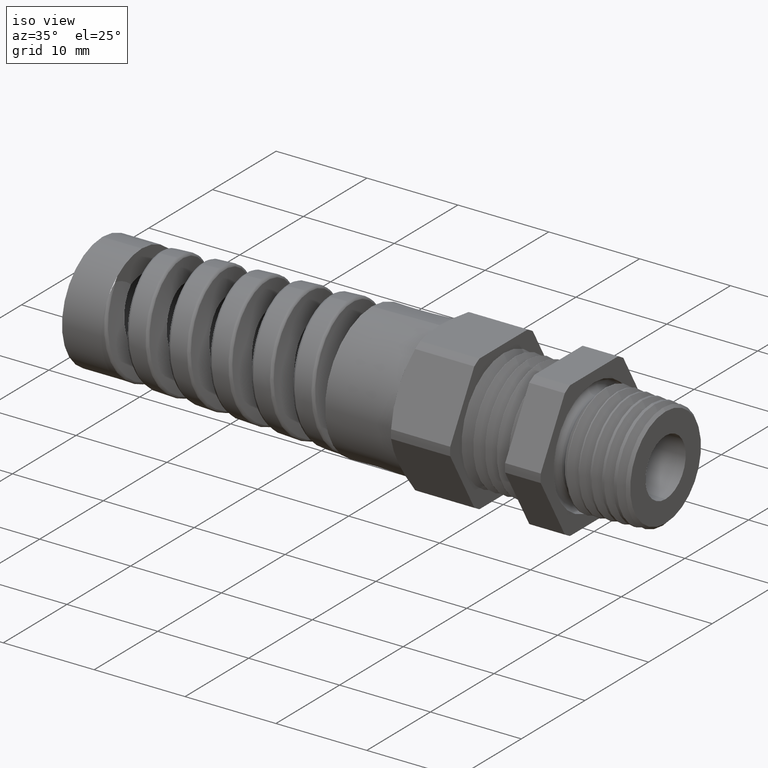
[diagram: clean part render]
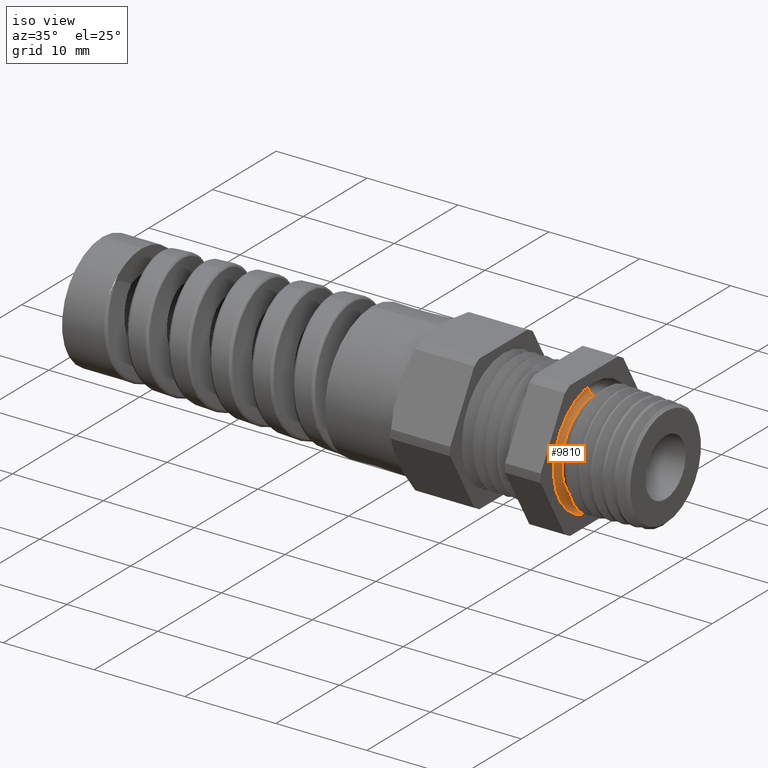
[diagram: same view with one face highlighted and labeled with its STEP entity id]
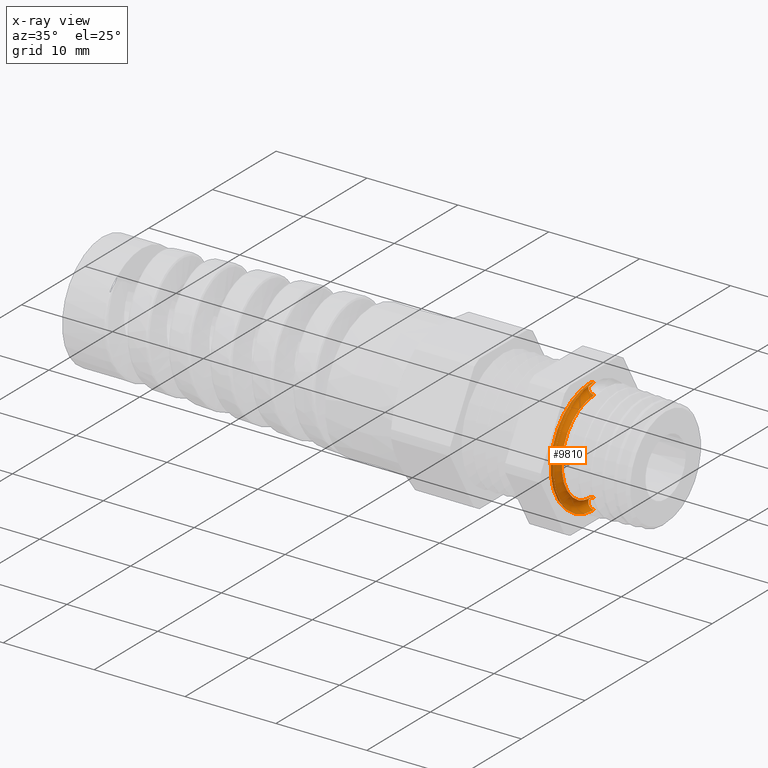
[diagram: x-ray of the same camera — body ghosted, the highlighted face saturated]
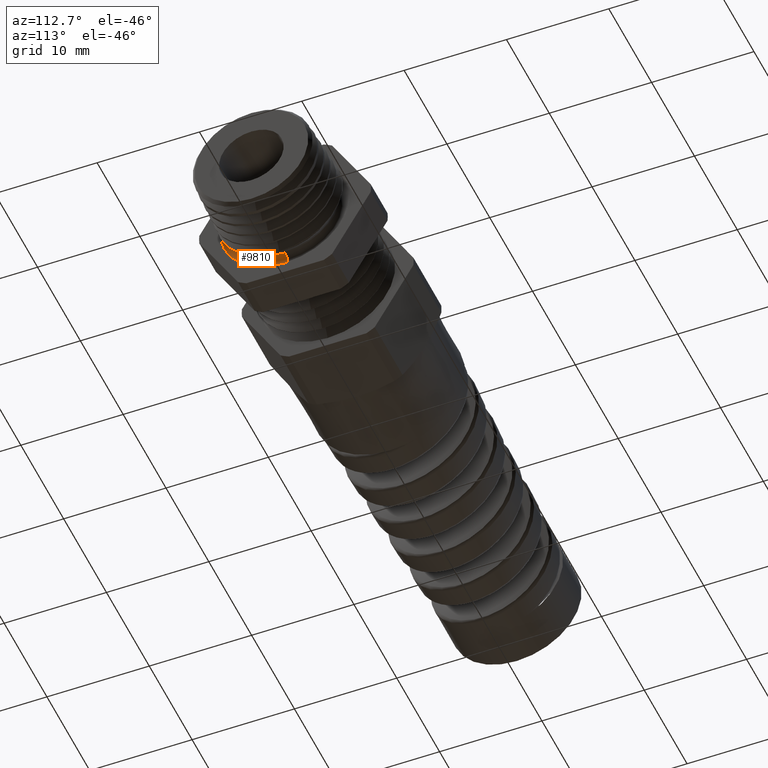
[diagram: same view with one face highlighted and labeled with its STEP entity id]
A machine part, iso view. The second image highlights one B-rep face of the part: STEP entity #9810.
The next image is the same camera in x-ray: the body ghosted, the highlighted face saturated — about 0% of this face is hidden behind the body in this view.
A second angle (auxiliary view) of the same face is appended — the face is thin or edge-on in the first view.
In plain terms, the highlighted toroidal blend (fillet) surface has major radius 5.715 mm and minor (blend) radius 0.635 mm.
Its self-contained STEP definition (entity closure, byte-faithful):
#1302 = EDGE_CURVE ( 'NONE', #1679, #1677, #6568, .T. ) ;
#1677 = VERTEX_POINT ( 'NONE', #7332 ) ;
#1679 = VERTEX_POINT ( 'NONE', #7331 ) ;
#2894 = VERTEX_POINT ( 'NONE', #8704 ) ;
#2907 = ORIENTED_EDGE ( 'NONE', *, *, #3928, .T. ) ;
#3831 = VERTEX_POINT ( 'NONE', #8769 ) ;
#3836 = ORIENTED_EDGE ( 'NONE', *, *, #3912, .F. ) ;
#3873 = EDGE_CURVE ( 'NONE', #1679, #3831, #8768, .T. ) ;
#3912 = EDGE_CURVE ( 'NONE', #1677, #2894, #8740, .T. ) ;
#3928 = EDGE_CURVE ( 'NONE', #3831, #2894, #8808, .T. ) ;
#6564 = DIRECTION ( 'NONE',  ( 0.0000000000000000000, 0.0000000000000000000, -1.000000000000000000 ) ) ;
#6565 = DIRECTION ( 'NONE',  ( 1.000000000000000000, 0.0000000000000000000, 0.0000000000000000000 ) ) ;
#6566 = CARTESIAN_POINT ( 'NONE',  ( -3.061616997868362800E-018, 0.0000000000000000000, 0.0000000000000000000 ) ) ;
#6567 = AXIS2_PLACEMENT_3D ( 'NONE', #6566, #6565, #6564 ) ;
#6568 = CIRCLE ( 'NONE', #6567, 0.2000000000000001500 ) ;
#7331 = CARTESIAN_POINT ( 'NONE',  ( -3.061616997868362800E-018, 2.449293598294708400E-017, 0.2000000000000001500 ) ) ;
#7332 = CARTESIAN_POINT ( 'NONE',  ( -3.061616997868362800E-018, 0.0000000000000000000, -0.2000000000000001500 ) ) ;
#8704 = CARTESIAN_POINT ( 'NONE',  ( 1.707404996040164500E-017, 0.0000000000000000000, -0.2499999999999998300 ) ) ;
#8736 = DIRECTION ( 'NONE',  ( 0.0000000000000000000, 0.0000000000000000000, -1.000000000000000000 ) ) ;
#8737 = DIRECTION ( 'NONE',  ( 0.0000000000000000000, -1.000000000000000000, 0.0000000000000000000 ) ) ;
#8738 = CARTESIAN_POINT ( 'NONE',  ( 0.0000000000000000000, 0.0000000000000000000, -0.2249999999999999800 ) ) ;
#8739 = AXIS2_PLACEMENT_3D ( 'NONE', #8738, #8737, #8736 ) ;
#8740 = CIRCLE ( 'NONE', #8739, 0.02499999999999983500 ) ;
#8741 = DIRECTION ( 'NONE',  ( 0.0000000000000000000, 1.224646799147352500E-016, 1.000000000000000000 ) ) ;
#8742 = DIRECTION ( 'NONE',  ( 0.0000000000000000000, 1.000000000000000000, -1.224646799147353200E-016 ) ) ;
#8743 = CARTESIAN_POINT ( 'NONE',  ( 0.0000000000000000000, 2.755455298081544500E-017, 0.2249999999999999800 ) ) ;
#8744 = AXIS2_PLACEMENT_3D ( 'NONE', #8743, #8742, #8741 ) ;
#8768 = CIRCLE ( 'NONE', #8744, 0.02499999999999983500 ) ;
#8769 = CARTESIAN_POINT ( 'NONE',  ( 1.707404996040164500E-017, 3.061616997868380600E-017, 0.2499999999999998300 ) ) ;
#8804 = DIRECTION ( 'NONE',  ( 0.0000000000000000000, 0.0000000000000000000, 1.000000000000000000 ) ) ;
#8805 = DIRECTION ( 'NONE',  ( 1.000000000000000000, 0.0000000000000000000, 0.0000000000000000000 ) ) ;
#8806 = CARTESIAN_POINT ( 'NONE',  ( 1.707404996040164500E-017, 0.0000000000000000000, 0.0000000000000000000 ) ) ;
#8807 = AXIS2_PLACEMENT_3D ( 'NONE', #8806, #8805, #8804 ) ;
#8808 = CIRCLE ( 'NONE', #8807, 0.2499999999999998300 ) ;
#9649 = TOROIDAL_SURFACE ( 'NONE', #9651, 0.2249999999999999800, 0.02499999999999983500 ) ;
#9651 = AXIS2_PLACEMENT_3D ( 'NONE', #9705, #9704, #9703 ) ;
#9652 = FACE_OUTER_BOUND ( 'NONE', #9800, .T. ) ;
#9703 = DIRECTION ( 'NONE',  ( 0.0000000000000000000, 0.0000000000000000000, -1.000000000000000000 ) ) ;
#9704 = DIRECTION ( 'NONE',  ( 1.000000000000000000, 0.0000000000000000000, 0.0000000000000000000 ) ) ;
#9705 = CARTESIAN_POINT ( 'NONE',  ( 0.0000000000000000000, 0.0000000000000000000, 0.0000000000000000000 ) ) ;
#9794 = ORIENTED_EDGE ( 'NONE', *, *, #3873, .T. ) ;
#9798 = ORIENTED_EDGE ( 'NONE', *, *, #1302, .F. ) ;
#9800 = EDGE_LOOP ( 'NONE', ( #9798, #9794, #2907, #3836 ) ) ;
#9810 = ADVANCED_FACE ( 'NONE', ( #9652 ), #9649, .F. ) ;